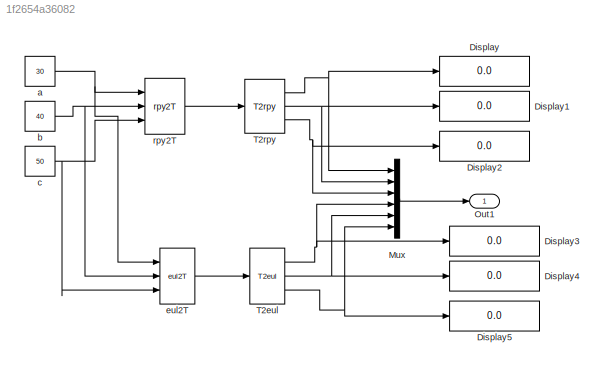
MODEL slx_1f2654a36082
KIND model
CONFIG AbsTol = auto
CONFIG EnableMultiTasking = off
CONFIG FixedStep = auto
CONFIG MaxStep = auto
CONFIG MinStep = auto
CONFIG RelTol = 1e-3
CONFIG SampleTimeConstraint = Unconstrained
CONFIG Solver = VariableStepAuto
CONFIG SolverName = VariableStepAuto
CONFIG StartTime = 0.0
CONFIG StopTime = 1
BLOCK [Display] Display
  Decimation = 1
  Ports = [1]
BLOCK [Display] Display1
  Decimation = 1
  Ports = [1]
BLOCK [Display] Display2
  Decimation = 1
  Ports = [1]
BLOCK [Display] Display3
  Decimation = 1
  Ports = [1]
BLOCK [Display] Display4
  Decimation = 1
  Ports = [1]
BLOCK [Display] Display5
  Decimation = 1
  Ports = [1]
BLOCK [Mux] Mux
  DisplayOption = bar
  Inputs = 6
  Ports = [6, 1]
BLOCK [Outport] Out1
  IconDisplay = Port number
BLOCK [Reference] T2eul  REF=roblocks/Toolbox/T2eul  (lib defined in mdl_2a292b13c81b, mdl_69400f8cfe22, +12 more)
  Ports = [1, 3]
  SourceBlock = roblocks/Toolbox/T2eul
BLOCK [Reference] T2rpy  REF=roblocks/Toolbox/T2rpy  (lib defined in mdl_2a292b13c81b, mdl_69400f8cfe22, +12 more)
  Ports = [1, 3]
  SourceBlock = roblocks/Toolbox/T2rpy
  SourceType = Transform to roll-pitch-yaw angles
BLOCK [Constant] a
  Value = 30
BLOCK [Constant] b
  Value = 40
BLOCK [Constant] c
  Value = 50
BLOCK [Reference] eul2T  REF=roblocks/Toolbox/eul2T  (lib defined in mdl_2a292b13c81b, mdl_69400f8cfe22, +12 more)
  Ports = [3, 1]
  SourceBlock = roblocks/Toolbox/eul2T
BLOCK [Reference] rpy2T  REF=roblocks/Toolbox/rpy2T  (lib defined in mdl_2a292b13c81b, mdl_69400f8cfe22, +12 more)
  Ports = [3, 1]
  SourceBlock = roblocks/Toolbox/rpy2T
  SourceType = Roll-pitch-yaw angles to transform
LINE Mux:1 -> Out1:1
NET T2eul:1 -> Display3:1, Mux:4
NET T2eul:2 -> Display4:1, Mux:5
NET T2eul:3 -> Display5:1, Mux:6
NET T2rpy:1 -> Display:1, Mux:1
NET T2rpy:2 -> Display1:1, Mux:2
NET T2rpy:3 -> Display2:1, Mux:3
NET a:1 -> eul2T:1, rpy2T:1
NET b:1 -> eul2T:2, rpy2T:2
NET c:1 -> eul2T:3, rpy2T:3
LINE eul2T:1 -> T2eul:1
LINE rpy2T:1 -> T2rpy:1
note: NET lines group one-source signal fan-out (src -> all destinations, sorted); 1:1 wires keep LINE
